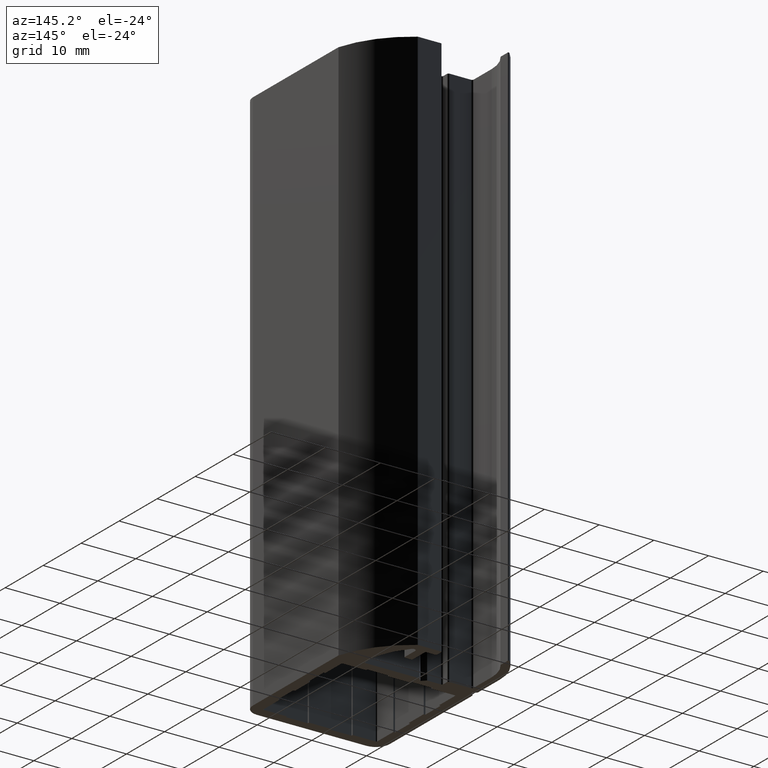
[diagram: clean part render]
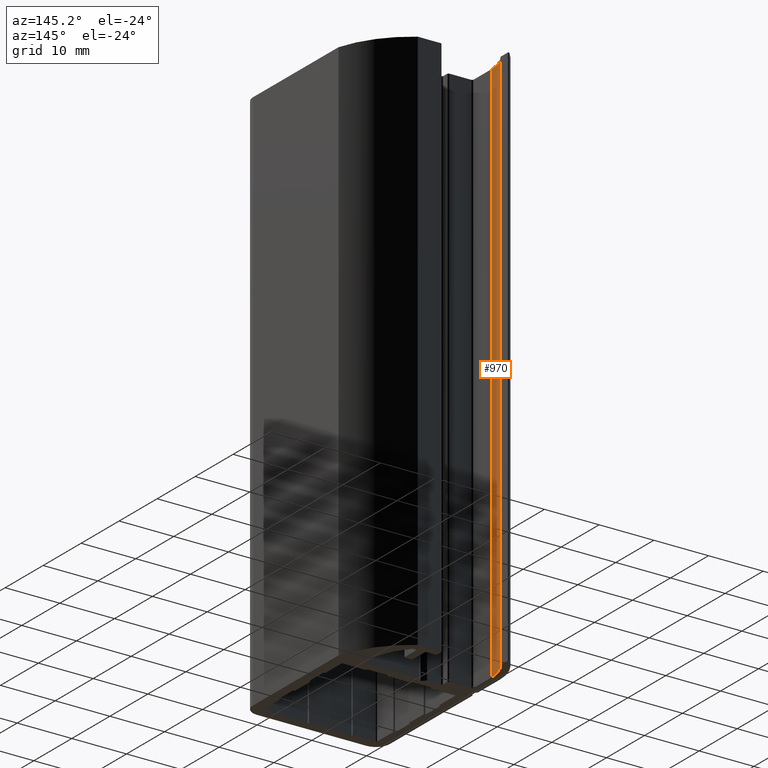
[diagram: same view with one face highlighted and labeled with its STEP entity id]
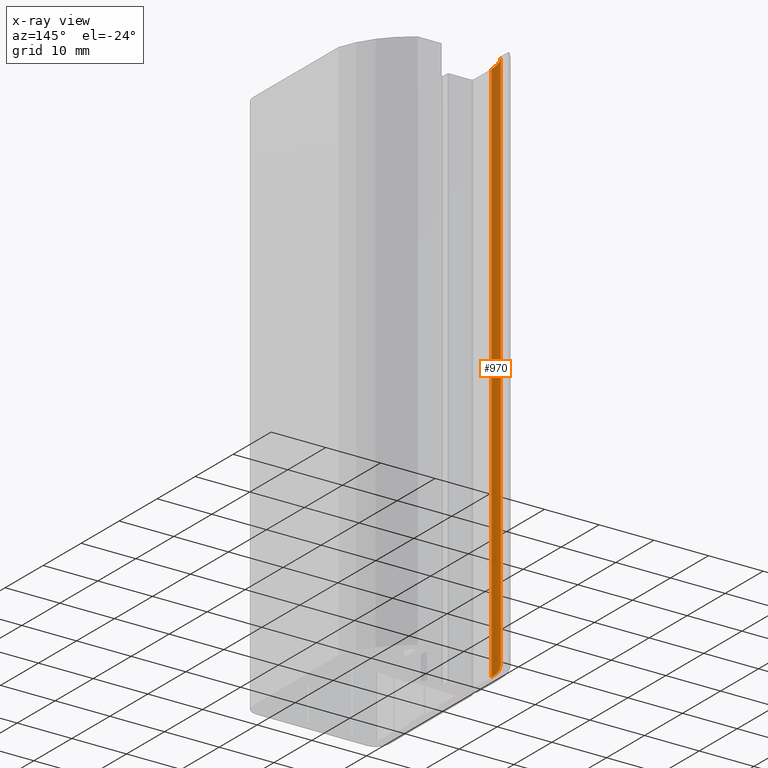
[diagram: x-ray of the same camera — body ghosted, the highlighted face saturated]
A machine part, auxiliary view. The second image highlights one B-rep face of the part: STEP entity #970.
The next image is the same camera in x-ray: the body ghosted, the highlighted face saturated — about 0% of this face is hidden behind the body in this view.
In plain terms, the highlighted cylindrical surface (partial cylindrical patch) has radius 7.5 mm, axis along (0, 0, -1).
Its self-contained STEP definition (entity closure, byte-faithful):
#912=CARTESIAN_POINT('',(-10.999999999889951,31.499999999684889,0.0));
#913=VERTEX_POINT('',#912);
#920=CARTESIAN_POINT('',(-10.999999999889951,31.499999999684889,100.0));
#921=VERTEX_POINT('',#920);
#922=CARTESIAN_POINT('',(-10.999999999889951,31.499999999684889,0.0));
#923=DIRECTION('',(0.0,0.0,1.0));
#924=VECTOR('',#923,100.0);
#925=LINE('',#922,#924);
#926=EDGE_CURVE('',#913,#921,#925,.T.);
#938=CARTESIAN_POINT('',(-3.499999999964985,31.499999999684889,0.0));
#939=DIRECTION('',(0.0,0.0,-1.0));
#940=DIRECTION('',(-1.0,1.010643E-015,0.0));
#941=AXIS2_PLACEMENT_3D('',#938,#939,#940);
#942=CYLINDRICAL_SURFACE('',#941,7.499999999924999);
#943=CARTESIAN_POINT('',(-9.538961038865637,35.947577943860296,0.0));
#944=VERTEX_POINT('',#943);
#945=CARTESIAN_POINT('',(-3.499999999964985,31.499999999684889,0.0));
#946=DIRECTION('',(0.0,0.0,-1.0));
#947=DIRECTION('',(1.0,0.0,0.0));
#948=AXIS2_PLACEMENT_3D('',#945,#946,#947);
#949=CIRCLE('',#948,7.499999999924999);
#950=EDGE_CURVE('',#913,#944,#949,.T.);
#951=ORIENTED_EDGE('',*,*,#950,.T.);
#952=CARTESIAN_POINT('',(-9.538961038865637,35.947577943860296,100.0));
#953=VERTEX_POINT('',#952);
#954=CARTESIAN_POINT('',(-9.538961038865637,35.947577943860296,0.0));
#955=DIRECTION('',(0.0,0.0,1.0));
#956=VECTOR('',#955,100.0);
#957=LINE('',#954,#956);
#958=EDGE_CURVE('',#944,#953,#957,.T.);
#959=ORIENTED_EDGE('',*,*,#958,.T.);
#960=CARTESIAN_POINT('',(-3.499999999964985,31.499999999684889,100.0));
#961=DIRECTION('',(0.0,0.0,-1.0));
#962=DIRECTION('',(1.0,0.0,0.0));
#963=AXIS2_PLACEMENT_3D('',#960,#961,#962);
#964=CIRCLE('',#963,7.499999999924999);
#965=EDGE_CURVE('',#921,#953,#964,.T.);
#966=ORIENTED_EDGE('',*,*,#965,.F.);
#967=ORIENTED_EDGE('',*,*,#926,.F.);
#968=EDGE_LOOP('',(#951,#959,#966,#967));
#969=FACE_OUTER_BOUND('',#968,.T.);
#970=ADVANCED_FACE('',(#969),#942,.F.);